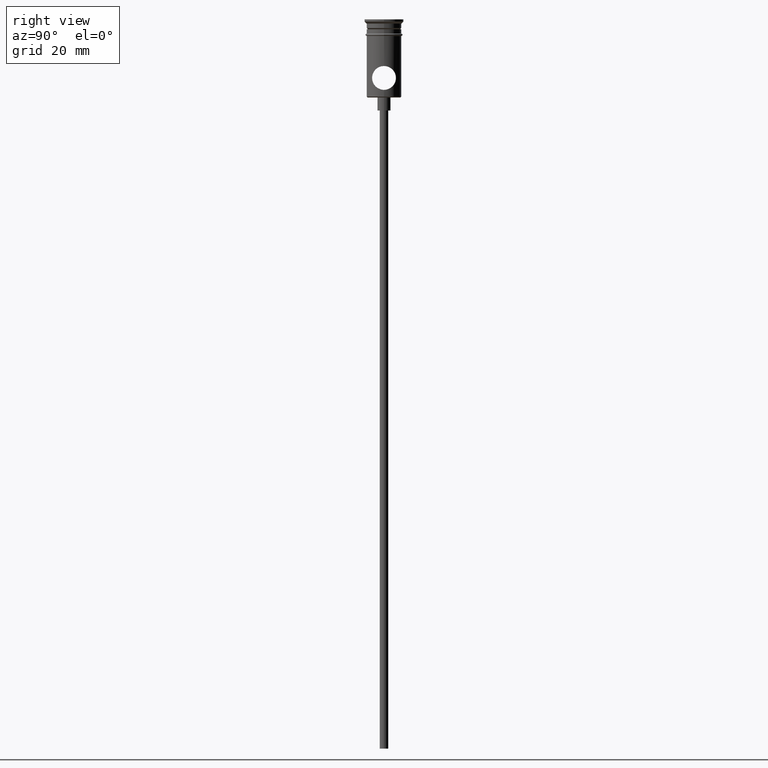
[diagram: clean part render]
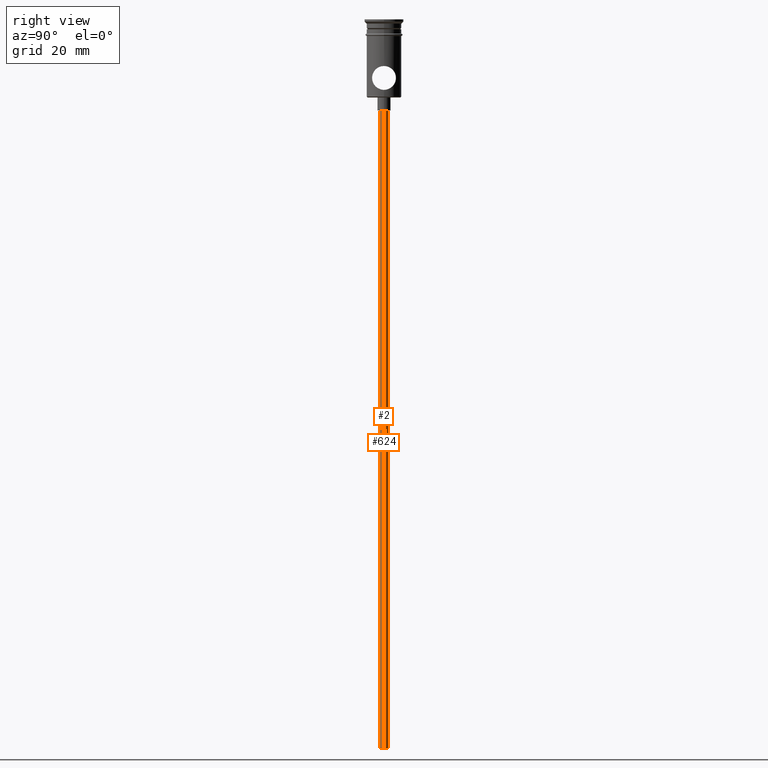
[diagram: same view with one multi-face feature highlighted, each face labeled with its STEP entity id]
A machine part, right view. The highlighted faces form ONE feature: a constant-radius fillet chain: 2 tangent blend faces with common blend radius 1 mm. The faces share edges in the B-rep.
Their STEP definitions:
[1] entity #2 (Cylinder):
#2 = ADVANCED_FACE ( 'NONE', ( #317 ), #1416, .T. ) ;
#57 = ORIENTED_EDGE ( 'NONE', *, *, #1201, .T. ) ;
#83 = AXIS2_PLACEMENT_3D ( 'NONE', #750, #1410, #288 ) ;
#127 = DIRECTION ( 'NONE',  ( -0.000000000000000000, -0.000000000000000000, 1.000000000000000000 ) ) ;
#132 = EDGE_CURVE ( 'NONE', #1270, #877, #1095, .T. ) ;
#139 = ORIENTED_EDGE ( 'NONE', *, *, #848, .F. ) ;
#140 = VECTOR ( 'NONE', #127, 1000.000000000000000 ) ;
#229 = CARTESIAN_POINT ( 'NONE',  ( -0.9999999999999997780, 1.224646799147352961E-16, -167.9999999999999716 ) ) ;
#242 = EDGE_CURVE ( 'NONE', #1270, #553, #669, .T. ) ;
#264 = CARTESIAN_POINT ( 'NONE',  ( -0.9999999999999997780, 1.224646799147352961E-16, -167.9999999999999716 ) ) ;
#288 = DIRECTION ( 'NONE',  ( 1.000000000000000000, 0.000000000000000000, 0.000000000000000000 ) ) ;
#317 = FACE_OUTER_BOUND ( 'NONE', #969, .T. ) ;
#341 = CARTESIAN_POINT ( 'NONE',  ( 0.9999999999999997780, 0.000000000000000000, -20.99999999999999645 ) ) ;
#368 = CIRCLE ( 'NONE', #749, 0.9999999999999997780 ) ;
#377 = AXIS2_PLACEMENT_3D ( 'NONE', #609, #1144, #388 ) ;
#379 = DIRECTION ( 'NONE',  ( 0.000000000000000000, 0.000000000000000000, -1.000000000000000000 ) ) ;
#388 = DIRECTION ( 'NONE',  ( -1.000000000000000000, 0.000000000000000000, 0.000000000000000000 ) ) ;
#409 = CARTESIAN_POINT ( 'NONE',  ( 0.9999999999999997780, 0.000000000000000000, -167.9999999999999716 ) ) ;
#433 = CARTESIAN_POINT ( 'NONE',  ( 0.9999999999999997780, 0.000000000000000000, -167.9999999999999716 ) ) ;
#451 = LINE ( 'NONE', #229, #140 ) ;
#463 = ORIENTED_EDGE ( 'NONE', *, *, #242, .F. ) ;
#491 = CARTESIAN_POINT ( 'NONE',  ( 0.000000000000000000, 0.000000000000000000, -20.99999999999999645 ) ) ;
#553 = VERTEX_POINT ( 'NONE', #264 ) ;
#609 = CARTESIAN_POINT ( 'NONE',  ( 0.000000000000000000, 0.000000000000000000, -167.9999999999999716 ) ) ;
#659 = ORIENTED_EDGE ( 'NONE', *, *, #132, .T. ) ;
#669 = CIRCLE ( 'NONE', #377, 0.9999999999999997780 ) ;
#724 = CARTESIAN_POINT ( 'NONE',  ( -0.9999999999999997780, 1.224646799147352961E-16, -20.99999999999999645 ) ) ;
#727 = VERTEX_POINT ( 'NONE', #724 ) ;
#740 = DIRECTION ( 'NONE',  ( -1.000000000000000000, 0.000000000000000000, 0.000000000000000000 ) ) ;
#749 = AXIS2_PLACEMENT_3D ( 'NONE', #491, #379, #740 ) ;
#750 = CARTESIAN_POINT ( 'NONE',  ( 0.000000000000000000, 0.000000000000000000, -167.9999999999999716 ) ) ;
#760 = DIRECTION ( 'NONE',  ( -0.000000000000000000, -0.000000000000000000, 1.000000000000000000 ) ) ;
#848 = EDGE_CURVE ( 'NONE', #553, #727, #451, .T. ) ;
#877 = VERTEX_POINT ( 'NONE', #341 ) ;
#969 = EDGE_LOOP ( 'NONE', ( #139, #463, #659, #57 ) ) ;
#1095 = LINE ( 'NONE', #433, #1138 ) ;
#1138 = VECTOR ( 'NONE', #760, 1000.000000000000000 ) ;
#1144 = DIRECTION ( 'NONE',  ( 0.000000000000000000, 0.000000000000000000, -1.000000000000000000 ) ) ;
#1201 = EDGE_CURVE ( 'NONE', #877, #727, #368, .T. ) ;
#1270 = VERTEX_POINT ( 'NONE', #409 ) ;
#1410 = DIRECTION ( 'NONE',  ( -0.000000000000000000, -0.000000000000000000, 1.000000000000000000 ) ) ;
#1416 = CYLINDRICAL_SURFACE ( 'NONE', #83, 0.9999999999999997780 ) ;
[2] entity #624 (Cylinder):
#46 = ORIENTED_EDGE ( 'NONE', *, *, #848, .T. ) ;
#106 = DIRECTION ( 'NONE',  ( -0.000000000000000000, -0.000000000000000000, 1.000000000000000000 ) ) ;
#117 = DIRECTION ( 'NONE',  ( -1.000000000000000000, 0.000000000000000000, 0.000000000000000000 ) ) ;
#127 = DIRECTION ( 'NONE',  ( -0.000000000000000000, -0.000000000000000000, 1.000000000000000000 ) ) ;
#132 = EDGE_CURVE ( 'NONE', #1270, #877, #1095, .T. ) ;
#140 = VECTOR ( 'NONE', #127, 1000.000000000000000 ) ;
#162 = ORIENTED_EDGE ( 'NONE', *, *, #1003, .T. ) ;
#229 = CARTESIAN_POINT ( 'NONE',  ( -0.9999999999999997780, 1.224646799147352961E-16, -167.9999999999999716 ) ) ;
#264 = CARTESIAN_POINT ( 'NONE',  ( -0.9999999999999997780, 1.224646799147352961E-16, -167.9999999999999716 ) ) ;
#282 = CIRCLE ( 'NONE', #464, 0.9999999999999997780 ) ;
#299 = CYLINDRICAL_SURFACE ( 'NONE', #979, 0.9999999999999997780 ) ;
#341 = CARTESIAN_POINT ( 'NONE',  ( 0.9999999999999997780, 0.000000000000000000, -20.99999999999999645 ) ) ;
#390 = EDGE_CURVE ( 'NONE', #553, #1270, #282, .T. ) ;
#407 = CARTESIAN_POINT ( 'NONE',  ( 0.000000000000000000, 0.000000000000000000, -20.99999999999999645 ) ) ;
#409 = CARTESIAN_POINT ( 'NONE',  ( 0.9999999999999997780, 0.000000000000000000, -167.9999999999999716 ) ) ;
#433 = CARTESIAN_POINT ( 'NONE',  ( 0.9999999999999997780, 0.000000000000000000, -167.9999999999999716 ) ) ;
#451 = LINE ( 'NONE', #229, #140 ) ;
#454 = DIRECTION ( 'NONE',  ( 0.000000000000000000, 0.000000000000000000, -1.000000000000000000 ) ) ;
#464 = AXIS2_PLACEMENT_3D ( 'NONE', #884, #454, #117 ) ;
#504 = CIRCLE ( 'NONE', #840, 0.9999999999999997780 ) ;
#531 = FACE_OUTER_BOUND ( 'NONE', #813, .T. ) ;
#553 = VERTEX_POINT ( 'NONE', #264 ) ;
#624 = ADVANCED_FACE ( 'NONE', ( #531 ), #299, .T. ) ;
#678 = ORIENTED_EDGE ( 'NONE', *, *, #132, .F. ) ;
#724 = CARTESIAN_POINT ( 'NONE',  ( -0.9999999999999997780, 1.224646799147352961E-16, -20.99999999999999645 ) ) ;
#727 = VERTEX_POINT ( 'NONE', #724 ) ;
#738 = DIRECTION ( 'NONE',  ( -1.000000000000000000, 0.000000000000000000, 0.000000000000000000 ) ) ;
#760 = DIRECTION ( 'NONE',  ( -0.000000000000000000, -0.000000000000000000, 1.000000000000000000 ) ) ;
#813 = EDGE_LOOP ( 'NONE', ( #1179, #46, #162, #678 ) ) ;
#838 = CARTESIAN_POINT ( 'NONE',  ( 0.000000000000000000, 0.000000000000000000, -167.9999999999999716 ) ) ;
#840 = AXIS2_PLACEMENT_3D ( 'NONE', #407, #847, #738 ) ;
#847 = DIRECTION ( 'NONE',  ( 0.000000000000000000, 0.000000000000000000, -1.000000000000000000 ) ) ;
#848 = EDGE_CURVE ( 'NONE', #553, #727, #451, .T. ) ;
#877 = VERTEX_POINT ( 'NONE', #341 ) ;
#884 = CARTESIAN_POINT ( 'NONE',  ( 0.000000000000000000, 0.000000000000000000, -167.9999999999999716 ) ) ;
#979 = AXIS2_PLACEMENT_3D ( 'NONE', #838, #106, #1189 ) ;
#1003 = EDGE_CURVE ( 'NONE', #727, #877, #504, .T. ) ;
#1095 = LINE ( 'NONE', #433, #1138 ) ;
#1138 = VECTOR ( 'NONE', #760, 1000.000000000000000 ) ;
#1179 = ORIENTED_EDGE ( 'NONE', *, *, #390, .F. ) ;
#1189 = DIRECTION ( 'NONE',  ( 1.000000000000000000, 0.000000000000000000, 0.000000000000000000 ) ) ;
#1270 = VERTEX_POINT ( 'NONE', #409 ) ;